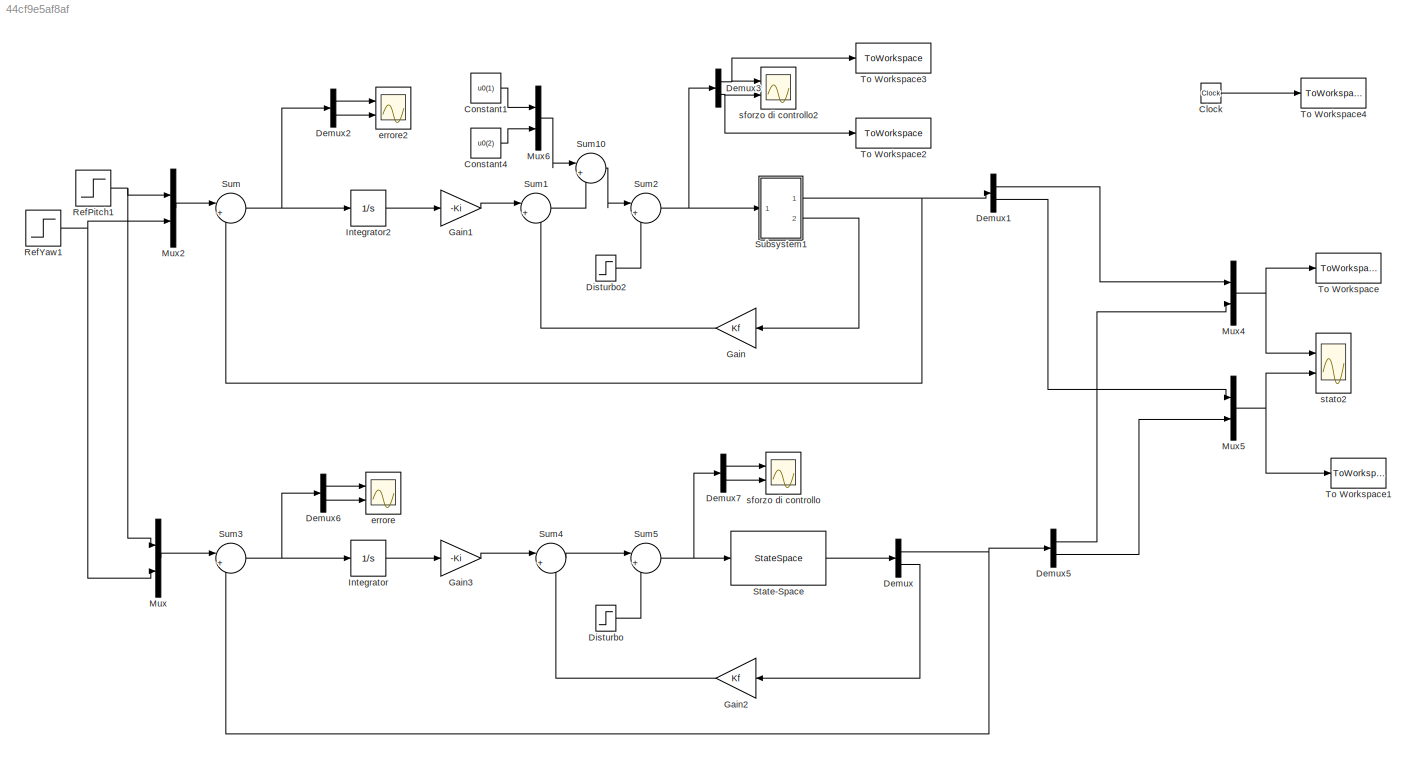
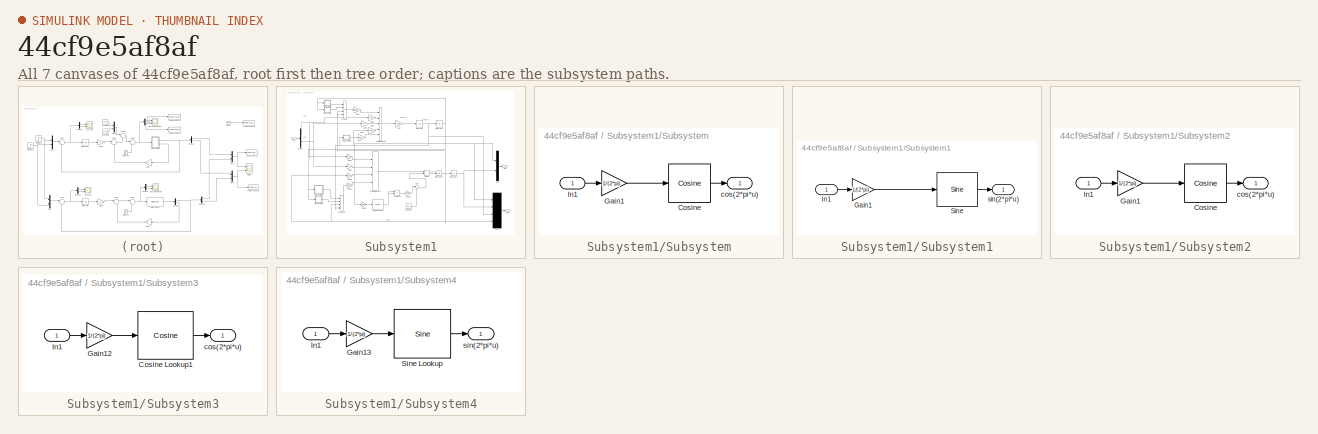
[diagram: thumbnail index - all 7 canvases of the model, root first then tree order]
MODEL slx_44cf9e5af8af
KIND model
CONFIG AbsTol = auto
CONFIG EnableMultiTasking = off
CONFIG FixedStep = auto
CONFIG MaxStep = 1e-3
CONFIG MinStep = auto
CONFIG RelTol = 1e-3
CONFIG SampleTimeConstraint = Unconstrained
CONFIG SolverName = VariableStepAuto
CONFIG StartTime = 0.0
CONFIG StopTime = 10.0
BLOCK [Clock] Clock
BLOCK [Constant] Constant1
  Value = u0(1)
BLOCK [Constant] Constant4
  Value = u0(2)
BLOCK [Demux] Demux
  Outputs = [2 4]
  Ports = [1, 2]
BLOCK [Demux] Demux1
  Outputs = 2
  Ports = [1, 2]
BLOCK [Demux] Demux2
  Outputs = 2
  Ports = [1, 2]
BLOCK [Demux] Demux3
  Outputs = 2
  Ports = [1, 2]
BLOCK [Demux] Demux5
  Outputs = 2
  Ports = [1, 2]
BLOCK [Demux] Demux6
  Outputs = 2
  Ports = [1, 2]
BLOCK [Demux] Demux7
  Outputs = 2
  Ports = [1, 2]
BLOCK [Step] Disturbo
  After = 0.5
  SampleTime = 0
  Time = 7
BLOCK [Step] Disturbo2
  After = 0.5
  SampleTime = 0
  Time = 7
BLOCK [Gain] Gain
  Gain = Kf
  Multiplication = Matrix(K*u)
BLOCK [Gain] Gain1
  Gain = -Ki
  Multiplication = Matrix(K*u)
BLOCK [Gain] Gain2
  Gain = Kf
  Multiplication = Matrix(K*u)
BLOCK [Gain] Gain3
  Gain = -Ki
  Multiplication = Matrix(K*u)
BLOCK [Integrator] Integrator
  Ports = [1, 1]
BLOCK [Integrator] Integrator2
  Ports = [1, 1]
BLOCK [Mux] Mux
  DisplayOption = bar
  Inputs = 2
  Ports = [2, 1]
BLOCK [Mux] Mux2
  DisplayOption = bar
  Inputs = 2
  Ports = [2, 1]
BLOCK [Mux] Mux4
  DisplayOption = bar
  Inputs = 2
  Ports = [2, 1]
BLOCK [Mux] Mux5
  DisplayOption = bar
  Inputs = 2
  Ports = [2, 1]
BLOCK [Mux] Mux6
  DisplayOption = bar
  Inputs = 2
  Ports = [2, 1]
BLOCK [Step] RefPitch1
  After = 0.3
  SampleTime = 0
BLOCK [Step] RefYaw1
  After = 0.3
  SampleTime = 0
BLOCK [StateSpace] State-Space
  A = A
  B = B
  C = [C; eye(4)]
  D = zeros(6,2)
  InitialCondition = 0
  Ports = [1, 1]
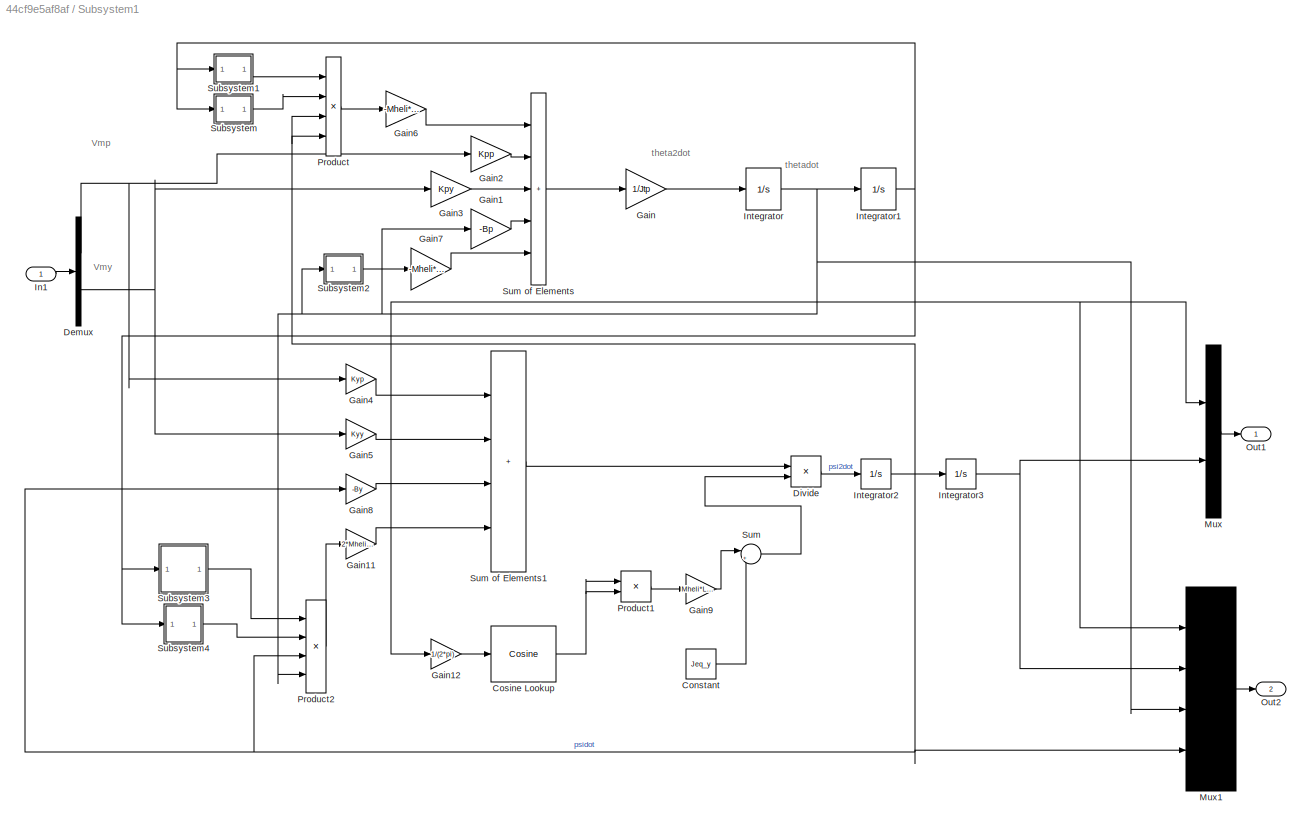
BLOCK [SubSystem] Subsystem1
  Ports = [1, 2]
  RequestExecContextInheritance = off
BLOCK [Constant] Subsystem1/Constant
  Value = Jeq_y
BLOCK [Reference] Subsystem1/Cosine Lookup  REF=simulink/Lookup
Tables/Cosine
  Ports = [1, 1]
  SourceBlock = simulink/Lookup\nTables/Cosine
  SourceProductBaseCode = SL
  SourceType = Sine and Cosine
BLOCK [Demux] Subsystem1/Demux
  Outputs = 2
  Ports = [1, 2]
BLOCK [Product] Subsystem1/Divide
  Inputs = */
  Ports = [2, 1]
BLOCK [Gain] Subsystem1/Gain
  Gain = 1/Jtp
BLOCK [Gain] Subsystem1/Gain1
  Gain = -Bp
BLOCK [Gain] Subsystem1/Gain11
  Gain = 2*Mheli*Lcm^2
BLOCK [Gain] Subsystem1/Gain12
  Gain = 1/(2*pi)
BLOCK [Gain] Subsystem1/Gain2
  Gain = Kpp
BLOCK [Gain] Subsystem1/Gain3
  Gain = Kpy
BLOCK [Gain] Subsystem1/Gain4
  Gain = Kyp
BLOCK [Gain] Subsystem1/Gain5
  Gain = Kyy
BLOCK [Gain] Subsystem1/Gain6
  Gain = -Mheli*Lcm^2
BLOCK [Gain] Subsystem1/Gain7
  Gain = -Mheli*g*Lcm
BLOCK [Gain] Subsystem1/Gain8
  Gain = -By
BLOCK [Gain] Subsystem1/Gain9
  Gain = Mheli*Lcm^2
BLOCK [Inport] Subsystem1/In1
BLOCK [Integrator] Subsystem1/Integrator
  Ports = [1, 1]
BLOCK [Integrator] Subsystem1/Integrator1
  Ports = [1, 1]
BLOCK [Integrator] Subsystem1/Integrator2
  Ports = [1, 1]
BLOCK [Integrator] Subsystem1/Integrator3
  Ports = [1, 1]
BLOCK [Mux] Subsystem1/Mux
  DisplayOption = bar
  Inputs = 2
  Ports = [2, 1]
BLOCK [Mux] Subsystem1/Mux1
  DisplayOption = bar
  Ports = [4, 1]
BLOCK [Outport] Subsystem1/Out1
BLOCK [Outport] Subsystem1/Out2
  Port = 2
BLOCK [Product] Subsystem1/Product
  Inputs = 4
  Ports = [4, 1]
BLOCK [Product] Subsystem1/Product1
  Ports = [2, 1]
BLOCK [Product] Subsystem1/Product2
  Inputs = 4
  Ports = [4, 1]
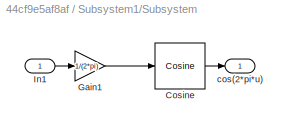
BLOCK [SubSystem] Subsystem1/Subsystem
  Ports = [1, 1]
  RequestExecContextInheritance = off
BLOCK [Reference] Subsystem1/Subsystem/Cosine  REF=simulink/Lookup
Tables/Cosine
  Ports = [1, 1]
  SourceBlock = simulink/Lookup\nTables/Cosine
  SourceProductBaseCode = SL
  SourceType = Sine and Cosine
BLOCK [Gain] Subsystem1/Subsystem/Gain1
  Gain = 1/(2*pi)
BLOCK [Inport] Subsystem1/Subsystem/In1
BLOCK [Outport] Subsystem1/Subsystem/cos(2*pi*u)
BLOCK [SubSystem] Subsystem1/Subsystem1
  Ports = [1, 1]
  RequestExecContextInheritance = off
BLOCK [Gain] Subsystem1/Subsystem1/Gain1
  Gain = 1/(2*pi)
BLOCK [Inport] Subsystem1/Subsystem1/In1
BLOCK [Reference] Subsystem1/Subsystem1/Sine  REF=simulink/Lookup
Tables/Sine
  Ports = [1, 1]
  SourceBlock = simulink/Lookup\nTables/Sine
  SourceProductBaseCode = SL
  SourceType = Sine and Cosine
BLOCK [Outport] Subsystem1/Subsystem1/sin(2*pi*u)
BLOCK [SubSystem] Subsystem1/Subsystem2
  Ports = [1, 1]
  RequestExecContextInheritance = off
BLOCK [Reference] Subsystem1/Subsystem2/Cosine  REF=simulink/Lookup
Tables/Cosine
  Ports = [1, 1]
  SourceBlock = simulink/Lookup\nTables/Cosine
  SourceProductBaseCode = SL
  SourceType = Sine and Cosine
BLOCK [Gain] Subsystem1/Subsystem2/Gain1
  Gain = 1/(2*pi)
BLOCK [Inport] Subsystem1/Subsystem2/In1
BLOCK [Outport] Subsystem1/Subsystem2/cos(2*pi*u)
BLOCK [SubSystem] Subsystem1/Subsystem3
  Ports = [1, 1]
  RequestExecContextInheritance = off
BLOCK [Reference] Subsystem1/Subsystem3/Cosine Lookup1  REF=simulink/Lookup
Tables/Cosine
  Ports = [1, 1]
  SourceBlock = simulink/Lookup\nTables/Cosine
  SourceProductBaseCode = SL
  SourceType = Sine and Cosine
BLOCK [Gain] Subsystem1/Subsystem3/Gain12
  Gain = 1/(2*pi)
BLOCK [Inport] Subsystem1/Subsystem3/In1
BLOCK [Outport] Subsystem1/Subsystem3/cos(2*pi*u)
BLOCK [SubSystem] Subsystem1/Subsystem4
  Ports = [1, 1]
  RequestExecContextInheritance = off
BLOCK [Gain] Subsystem1/Subsystem4/Gain13
  Gain = 1/(2*pi)
BLOCK [Inport] Subsystem1/Subsystem4/In1
BLOCK [Reference] Subsystem1/Subsystem4/Sine Lookup  REF=simulink/Lookup
Tables/Sine
  Ports = [1, 1]
  SourceBlock = simulink/Lookup\nTables/Sine
  SourceProductBaseCode = SL
  SourceType = Sine and Cosine
BLOCK [Outport] Subsystem1/Subsystem4/sin(2*pi*u)
BLOCK [Sum] Subsystem1/Sum
  Inputs = |++
  Ports = [2, 1]
BLOCK [Sum] Subsystem1/Sum of Elements
  IconShape = rectangular
  Inputs = +++++
  Ports = [5, 1]
BLOCK [Sum] Subsystem1/Sum of Elements1
  IconShape = rectangular
  Inputs = ++++
  Ports = [4, 1]
BLOCK [Sum] Sum
  Inputs = |+-
  Ports = [2, 1]
BLOCK [Sum] Sum1
  Inputs = |+-
  Ports = [2, 1]
BLOCK [Sum] Sum10
  Inputs = |++
  Ports = [2, 1]
BLOCK [Sum] Sum2
  Inputs = |++
  Ports = [2, 1]
BLOCK [Sum] Sum3
  Inputs = |+-
  Ports = [2, 1]
BLOCK [Sum] Sum4
  Inputs = |+-
  Ports = [2, 1]
BLOCK [Sum] Sum5
  Inputs = |++
  Ports = [2, 1]
BLOCK [ToWorkspace] To Workspace
  FixptAsFi = on
  MaxDataPoints = inf
  Ports = [1]
  SampleTime = -1
  Save2DSignal = 2-D array (concatenate along first dimension)
  VariableName = pitch
BLOCK [ToWorkspace] To Workspace1
  FixptAsFi = on
  MaxDataPoints = inf
  Ports = [1]
  SampleTime = -1
  Save2DSignal = 2-D array (concatenate along first dimension)
  VariableName = yaw
BLOCK [ToWorkspace] To Workspace2
  FixptAsFi = on
  MaxDataPoints = inf
  Ports = [1]
  SampleTime = -1
  Save2DSignal = 2-D array (concatenate along first dimension)
  VariableName = motoryaw
BLOCK [ToWorkspace] To Workspace3
  FixptAsFi = on
  MaxDataPoints = inf
  Ports = [1]
  SampleTime = -1
  Save2DSignal = 2-D array (concatenate along first dimension)
  VariableName = motorpitch
BLOCK [ToWorkspace] To Workspace4
  FixptAsFi = on
  MaxDataPoints = inf
  Ports = [1]
  SampleTime = -1
  Save2DSignal = 2-D array (concatenate along first dimension)
  VariableName = t
BLOCK [Scope] errore
  Floating = off
  NumInputPorts = 2
  Ports = [2]
  ScopeSpecificationString = Simulink.scopes.TimeScopeBlockCfg('CurrentConfiguration', extmgr.ConfigurationSet(extmgr.Configuration('Core','General UI',true),extmgr.Configuration('Core','Source UI',true),extmgr.Configuration('Sources','WiredSimulink',true,'DataLoggingVariableName','ScopeData6'),extmgr.Configuration('Visuals','Time Domain',true,'SerializedDisplays',{struct('MinYLimReal','-0.02713','MaxYLimReal','0.22524','YLab...<+2107ch>
BLOCK [Scope] errore2
  Floating = off
  NumInputPorts = 2
  Ports = [2]
  ScopeSpecificationString = Simulink.scopes.TimeScopeBlockCfg('CurrentConfiguration', extmgr.ConfigurationSet(extmgr.Configuration('Core','General UI',true),extmgr.Configuration('Core','Source UI',true),extmgr.Configuration('Sources','WiredSimulink',true,'DataLoggingVariableName','ScopeData3'),extmgr.Configuration('Visuals','Time Domain',true,'SerializedDisplays',{struct('MinYLimReal','-1.25','MaxYLimReal','11.25','YLabelRea...<+2101ch>
BLOCK [Scope] sforzo di controllo
  Floating = off
  NumInputPorts = 2
  Ports = [2]
  ScopeSpecificationString = Simulink.scopes.TimeScopeBlockCfg('CurrentConfiguration', extmgr.ConfigurationSet(extmgr.Configuration('Core','General UI',true),extmgr.Configuration('Core','Source UI',true),extmgr.Configuration('Sources','WiredSimulink',true),extmgr.Configuration('Visuals','Time Domain',true,'SerializedDisplays',{struct('MinYLimReal','-3.28698','MaxYLimReal','2.45473','YLabelReal','','MinYLimMag','0.00000','MaxY...<+2004ch>
BLOCK [Scope] sforzo di controllo2
  Floating = off
  NumInputPorts = 2
  Ports = [2]
  ScopeSpecificationString = Simulink.scopes.TimeScopeBlockCfg('CurrentConfiguration', extmgr.ConfigurationSet(extmgr.Configuration('Core','General UI',true),extmgr.Configuration('Core','Source UI',true),extmgr.Configuration('Sources','WiredSimulink',true,'DataLoggingVariableName','ScopeData4'),extmgr.Configuration('Visuals','Time Domain',true,'SerializedDisplays',{struct('MinYLimReal','12.35672','MaxYLimReal','13.67878','YLa...<+2064ch>
BLOCK [Scope] stato2
  Floating = off
  NumInputPorts = 2
  Ports = [2]
  ScopeSpecificationString = Simulink.scopes.TimeScopeBlockCfg('CurrentConfiguration', extmgr.ConfigurationSet(extmgr.Configuration('Core','General UI',true),extmgr.Configuration('Core','Source UI',true),extmgr.Configuration('Sources','WiredSimulink',true,'DataLoggingVariableName','ScopeData2'),extmgr.Configuration('Visuals','Time Domain',true,'SerializedDisplays',{struct('MinYLimReal','0.2726','MaxYLimReal','0.2984','YLabelR...<+2127ch>
ANNOTATION Subsystem1: Vmp
ANNOTATION Subsystem1: Vmy
ANNOTATION Subsystem1: theta2dot
ANNOTATION Subsystem1: thetadot
LINE Clock:1 -> To Workspace4:1
LINE Constant1:1 -> Mux6:1
LINE Constant4:1 -> Mux6:2
LINE Demux1:1 -> Mux4:1
LINE Demux1:2 -> Mux5:1
LINE Demux2:1 -> errore2:1
LINE Demux2:2 -> errore2:2
NET Demux3:1 -> To Workspace3:1, sforzo di controllo2:1
NET Demux3:2 -> To Workspace2:1, sforzo di controllo2:2
LINE Demux5:1 -> Mux4:2
LINE Demux5:2 -> Mux5:2
LINE Demux6:1 -> errore:1
LINE Demux6:2 -> errore:2
LINE Demux7:1 -> sforzo di controllo:1
LINE Demux7:2 -> sforzo di controllo:2
NET Demux:1 -> Demux5:1, Sum3:2
LINE Demux:2 -> Gain2:1
LINE Disturbo2:1 -> Sum2:2
LINE Disturbo:1 -> Sum5:2
LINE Gain1:1 -> Sum1:1
LINE Gain2:1 -> Sum4:2
LINE Gain3:1 -> Sum4:1
LINE Gain:1 -> Sum1:2
LINE Integrator2:1 -> Gain1:1
LINE Integrator:1 -> Gain3:1
LINE Mux2:1 -> Sum:1
NET Mux4:1 -> To Workspace:1, stato2:1
NET Mux5:1 -> To Workspace1:1, stato2:2
LINE Mux6:1 -> Sum10:1
LINE Mux:1 -> Sum3:1
NET RefPitch1:1 -> Mux2:1, Mux:1
NET RefYaw1:1 -> Mux2:2, Mux:2
LINE State-Space:1 -> Demux:1
LINE Subsystem1/Constant:1 -> Subsystem1/Sum:2
NET Subsystem1/Cosine Lookup:1 -> Subsystem1/Product1:1, Subsystem1/Product1:2
NET Subsystem1/Demux:1 -> Subsystem1/Gain2:1, Subsystem1/Gain4:1
NET Subsystem1/Demux:2 -> Subsystem1/Gain3:1, Subsystem1/Gain5:1
LINE Subsystem1/Divide:1 -> Subsystem1/Integrator2:1
LINE Subsystem1/Gain11:1 -> Subsystem1/Sum of Elements1:4
LINE Subsystem1/Gain12:1 -> Subsystem1/Cosine Lookup:1
LINE Subsystem1/Gain1:1 -> Subsystem1/Sum of Elements:4
LINE Subsystem1/Gain2:1 -> Subsystem1/Sum of Elements:2
LINE Subsystem1/Gain3:1 -> Subsystem1/Sum of Elements:3
LINE Subsystem1/Gain4:1 -> Subsystem1/Sum of Elements1:1
LINE Subsystem1/Gain5:1 -> Subsystem1/Sum of Elements1:2
LINE Subsystem1/Gain6:1 -> Subsystem1/Sum of Elements:1
LINE Subsystem1/Gain7:1 -> Subsystem1/Sum of Elements:5
LINE Subsystem1/Gain8:1 -> Subsystem1/Sum of Elements1:3
LINE Subsystem1/Gain9:1 -> Subsystem1/Sum:1
LINE Subsystem1/Gain:1 -> Subsystem1/Integrator:1
LINE Subsystem1/In1:1 -> Subsystem1/Demux:1
NET Subsystem1/Integrator1:1 -> Subsystem1/Gain12:1, Subsystem1/Mux1:1, Subsystem1/Mux:1, Subsystem1/Subsystem1:1, Subsystem1/Subsystem3:1, Subsystem1/Subsystem4:1, Subsystem1/Subsystem:1
NET Subsystem1/Integrator2:1 -> Subsystem1/Gain8:1, Subsystem1/Integrator3:1, Subsystem1/Mux1:4, Subsystem1/Product2:3, Subsystem1/Product:3, Subsystem1/Product:4
NET Subsystem1/Integrator3:1 -> Subsystem1/Mux1:2, Subsystem1/Mux:2
NET Subsystem1/Integrator:1 -> Subsystem1/Gain1:1, Subsystem1/Integrator1:1, Subsystem1/Mux1:3, Subsystem1/Product2:4, Subsystem1/Subsystem2:1
LINE Subsystem1/Mux1:1 -> Subsystem1/Out2:1
LINE Subsystem1/Mux:1 -> Subsystem1/Out1:1
LINE Subsystem1/Product1:1 -> Subsystem1/Gain9:1
LINE Subsystem1/Product2:1 -> Subsystem1/Gain11:1
LINE Subsystem1/Product:1 -> Subsystem1/Gain6:1
LINE Subsystem1/Subsystem/Cosine:1 -> Subsystem1/Subsystem/cos(2*pi*u):1
LINE Subsystem1/Subsystem/Gain1:1 -> Subsystem1/Subsystem/Cosine:1
LINE Subsystem1/Subsystem/In1:1 -> Subsystem1/Subsystem/Gain1:1
LINE Subsystem1/Subsystem1/Gain1:1 -> Subsystem1/Subsystem1/Sine:1
LINE Subsystem1/Subsystem1/In1:1 -> Subsystem1/Subsystem1/Gain1:1
LINE Subsystem1/Subsystem1/Sine:1 -> Subsystem1/Subsystem1/sin(2*pi*u):1
LINE Subsystem1/Subsystem1:1 -> Subsystem1/Product:1
LINE Subsystem1/Subsystem2/Cosine:1 -> Subsystem1/Subsystem2/cos(2*pi*u):1
LINE Subsystem1/Subsystem2/Gain1:1 -> Subsystem1/Subsystem2/Cosine:1
LINE Subsystem1/Subsystem2/In1:1 -> Subsystem1/Subsystem2/Gain1:1
LINE Subsystem1/Subsystem2:1 -> Subsystem1/Gain7:1
LINE Subsystem1/Subsystem3/Cosine Lookup1:1 -> Subsystem1/Subsystem3/cos(2*pi*u):1
LINE Subsystem1/Subsystem3/Gain12:1 -> Subsystem1/Subsystem3/Cosine Lookup1:1
LINE Subsystem1/Subsystem3/In1:1 -> Subsystem1/Subsystem3/Gain12:1
LINE Subsystem1/Subsystem3:1 -> Subsystem1/Product2:1
LINE Subsystem1/Subsystem4/Gain13:1 -> Subsystem1/Subsystem4/Sine Lookup:1
LINE Subsystem1/Subsystem4/In1:1 -> Subsystem1/Subsystem4/Gain13:1
LINE Subsystem1/Subsystem4/Sine Lookup:1 -> Subsystem1/Subsystem4/sin(2*pi*u):1
LINE Subsystem1/Subsystem4:1 -> Subsystem1/Product2:2
LINE Subsystem1/Subsystem:1 -> Subsystem1/Product:2
LINE Subsystem1/Sum of Elements1:1 -> Subsystem1/Divide:1
LINE Subsystem1/Sum of Elements:1 -> Subsystem1/Gain:1
LINE Subsystem1/Sum:1 -> Subsystem1/Divide:2
NET Subsystem1:1 -> Demux1:1, Sum:2
LINE Subsystem1:2 -> Gain:1
LINE Sum10:1 -> Sum2:1
LINE Sum1:1 -> Sum10:2
NET Sum2:1 -> Demux3:1, Subsystem1:1
NET Sum3:1 -> Demux6:1, Integrator:1
LINE Sum4:1 -> Sum5:1
NET Sum5:1 -> Demux7:1, State-Space:1
NET Sum:1 -> Demux2:1, Integrator2:1
note: NET lines group one-source signal fan-out (src -> all destinations, sorted); 1:1 wires keep LINE
